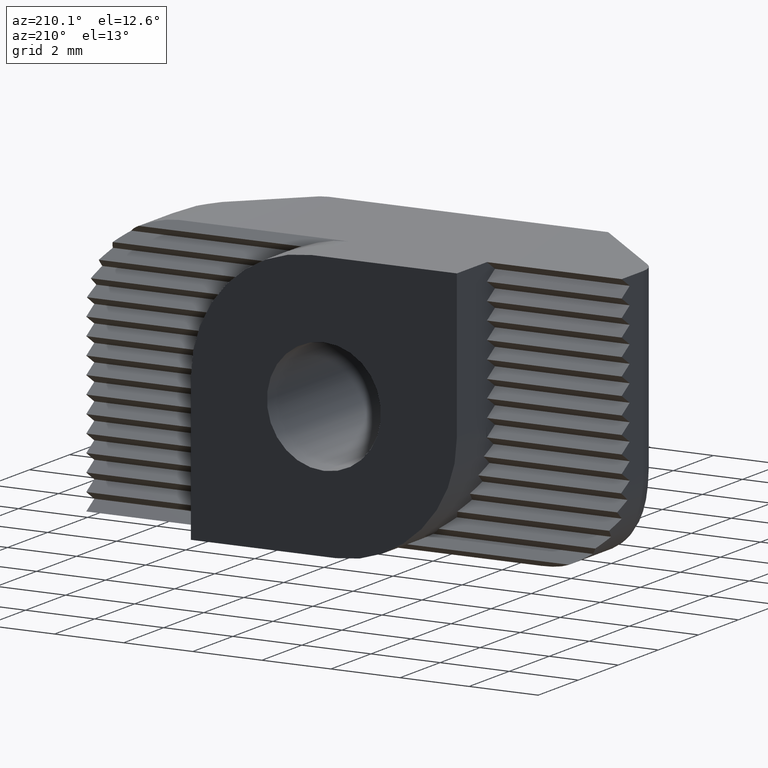
[diagram: clean part render]
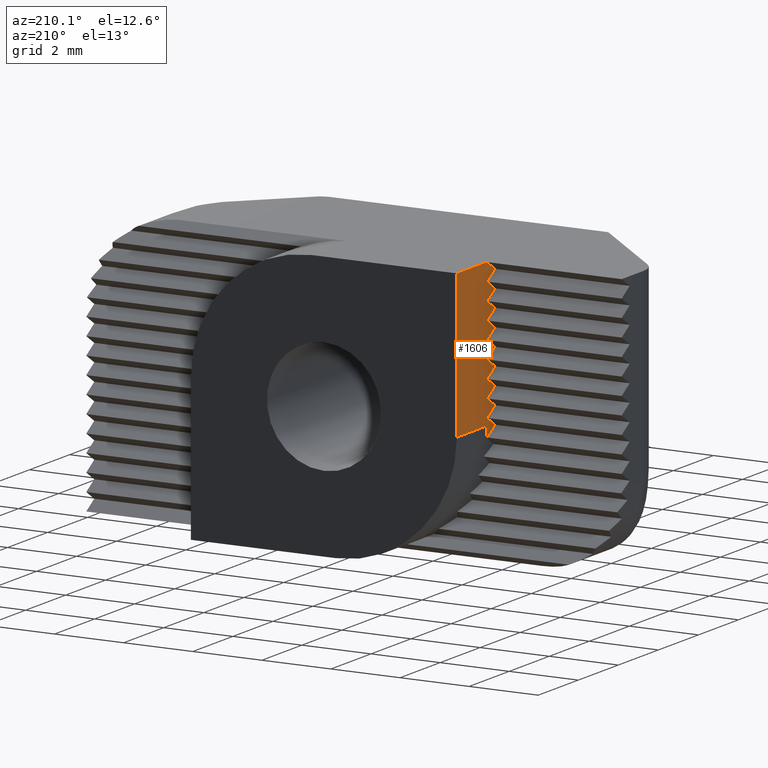
[diagram: same view with one face highlighted and labeled with its STEP entity id]
A machine part, auxiliary view. The second image highlights one B-rep face of the part: STEP entity #1606.
In plain terms, the highlighted planar face has unit normal (1, 0, -0).
Its self-contained STEP definition (entity closure, byte-faithful):
#83=PLANE('',#1743);
#160=FACE_OUTER_BOUND('',#246,.T.);
#246=EDGE_LOOP('',(#1244,#1245,#1246,#1247,#1248,#1249,#1250,#1251,#1252,
#1253,#1254,#1255,#1256,#1257,#1258,#1259,#1260,#1261,#1262,#1263,#1264,
#1265));
#321=LINE('',#2335,#498);
#387=LINE('',#2507,#564);
#416=LINE('',#2629,#593);
#417=LINE('',#2630,#594);
#418=LINE('',#2632,#595);
#419=LINE('',#2634,#596);
#420=LINE('',#2636,#597);
#421=LINE('',#2638,#598);
#422=LINE('',#2640,#599);
#423=LINE('',#2642,#600);
#424=LINE('',#2644,#601);
#425=LINE('',#2646,#602);
#426=LINE('',#2648,#603);
#427=LINE('',#2650,#604);
#428=LINE('',#2652,#605);
#429=LINE('',#2654,#606);
#430=LINE('',#2656,#607);
#431=LINE('',#2658,#608);
#432=LINE('',#2660,#609);
#433=LINE('',#2662,#610);
#434=LINE('',#2664,#611);
#435=LINE('',#2665,#612);
#498=VECTOR('',#1863,1000.);
#564=VECTOR('',#1951,1000.);
#593=VECTOR('',#2036,1000.);
#594=VECTOR('',#2037,1000.);
#595=VECTOR('',#2038,1000.);
#596=VECTOR('',#2039,1000.);
#597=VECTOR('',#2040,1000.);
#598=VECTOR('',#2041,1000.);
#599=VECTOR('',#2042,1000.);
#600=VECTOR('',#2043,1000.);
#601=VECTOR('',#2044,1000.);
#602=VECTOR('',#2045,1000.);
#603=VECTOR('',#2046,1000.);
#604=VECTOR('',#2047,1000.);
#605=VECTOR('',#2048,1000.);
#606=VECTOR('',#2049,1000.);
#607=VECTOR('',#2050,1000.);
#608=VECTOR('',#2051,1000.);
#609=VECTOR('',#2052,1000.);
#610=VECTOR('',#2053,1000.);
#611=VECTOR('',#2054,1000.);
#612=VECTOR('',#2055,1000.);
#691=VERTEX_POINT('',#2330);
#693=VERTEX_POINT('',#2333);
#761=VERTEX_POINT('',#2504);
#762=VERTEX_POINT('',#2506);
#807=VERTEX_POINT('',#2628);
#808=VERTEX_POINT('',#2631);
#809=VERTEX_POINT('',#2633);
#810=VERTEX_POINT('',#2635);
#811=VERTEX_POINT('',#2637);
#812=VERTEX_POINT('',#2639);
#813=VERTEX_POINT('',#2641);
#814=VERTEX_POINT('',#2643);
#815=VERTEX_POINT('',#2645);
#816=VERTEX_POINT('',#2647);
#817=VERTEX_POINT('',#2649);
#818=VERTEX_POINT('',#2651);
#819=VERTEX_POINT('',#2653);
#820=VERTEX_POINT('',#2655);
#821=VERTEX_POINT('',#2657);
#822=VERTEX_POINT('',#2659);
#823=VERTEX_POINT('',#2661);
#824=VERTEX_POINT('',#2663);
#856=EDGE_CURVE('',#691,#693,#321,.T.);
#928=EDGE_CURVE('',#761,#762,#387,.T.);
#982=EDGE_CURVE('',#807,#761,#416,.T.);
#983=EDGE_CURVE('',#807,#691,#417,.T.);
#984=EDGE_CURVE('',#693,#808,#418,.T.);
#985=EDGE_CURVE('',#808,#809,#419,.T.);
#986=EDGE_CURVE('',#809,#810,#420,.T.);
#987=EDGE_CURVE('',#810,#811,#421,.T.);
#988=EDGE_CURVE('',#811,#812,#422,.T.);
#989=EDGE_CURVE('',#812,#813,#423,.T.);
#990=EDGE_CURVE('',#813,#814,#424,.T.);
#991=EDGE_CURVE('',#814,#815,#425,.T.);
#992=EDGE_CURVE('',#815,#816,#426,.T.);
#993=EDGE_CURVE('',#816,#817,#427,.T.);
#994=EDGE_CURVE('',#817,#818,#428,.T.);
#995=EDGE_CURVE('',#818,#819,#429,.T.);
#996=EDGE_CURVE('',#819,#820,#430,.T.);
#997=EDGE_CURVE('',#820,#821,#431,.T.);
#998=EDGE_CURVE('',#821,#822,#432,.T.);
#999=EDGE_CURVE('',#822,#823,#433,.T.);
#1000=EDGE_CURVE('',#823,#824,#434,.T.);
#1001=EDGE_CURVE('',#824,#762,#435,.T.);
#1244=ORIENTED_EDGE('',*,*,#982,.F.);
#1245=ORIENTED_EDGE('',*,*,#983,.T.);
#1246=ORIENTED_EDGE('',*,*,#856,.T.);
#1247=ORIENTED_EDGE('',*,*,#984,.T.);
#1248=ORIENTED_EDGE('',*,*,#985,.T.);
#1249=ORIENTED_EDGE('',*,*,#986,.T.);
#1250=ORIENTED_EDGE('',*,*,#987,.T.);
#1251=ORIENTED_EDGE('',*,*,#988,.T.);
#1252=ORIENTED_EDGE('',*,*,#989,.T.);
#1253=ORIENTED_EDGE('',*,*,#990,.T.);
#1254=ORIENTED_EDGE('',*,*,#991,.T.);
#1255=ORIENTED_EDGE('',*,*,#992,.T.);
#1256=ORIENTED_EDGE('',*,*,#993,.T.);
#1257=ORIENTED_EDGE('',*,*,#994,.T.);
#1258=ORIENTED_EDGE('',*,*,#995,.T.);
#1259=ORIENTED_EDGE('',*,*,#996,.T.);
#1260=ORIENTED_EDGE('',*,*,#997,.T.);
#1261=ORIENTED_EDGE('',*,*,#998,.T.);
#1262=ORIENTED_EDGE('',*,*,#999,.T.);
#1263=ORIENTED_EDGE('',*,*,#1000,.T.);
#1264=ORIENTED_EDGE('',*,*,#1001,.T.);
#1265=ORIENTED_EDGE('',*,*,#928,.F.);
#1606=ADVANCED_FACE('',(#160),#83,.F.);
#1743=AXIS2_PLACEMENT_3D('',#2627,#2034,#2035);
#1863=DIRECTION('',(-2.25288763113871E-16,0.,-1.));
#1951=DIRECTION('',(0.,-1.,0.));
#2034=DIRECTION('center_axis',(1.,0.,-2.25288763113871E-16));
#2035=DIRECTION('ref_axis',(-2.25288763113871E-16,0.,-1.));
#2036=DIRECTION('',(2.25288763113871E-16,0.,1.));
#2037=DIRECTION('',(0.,-1.,0.));
#2038=DIRECTION('',(1.19402805644979E-16,-0.847998304005088,0.52999894000318));
#2039=DIRECTION('',(1.19402805644979E-16,0.847998304005088,0.52999894000318));
#2040=DIRECTION('',(1.19402805644979E-16,-0.847998304005088,0.52999894000318));
#2041=DIRECTION('',(1.19402805644979E-16,0.847998304005088,0.52999894000318));
#2042=DIRECTION('',(1.19402805644979E-16,-0.847998304005088,0.52999894000318));
#2043=DIRECTION('',(1.19402805644979E-16,0.847998304005088,0.52999894000318));
#2044=DIRECTION('',(1.19402805644979E-16,-0.847998304005088,0.52999894000318));
#2045=DIRECTION('',(1.19402805644979E-16,0.847998304005088,0.52999894000318));
#2046=DIRECTION('',(1.19402805644979E-16,-0.847998304005088,0.52999894000318));
#2047=DIRECTION('',(1.19402805644979E-16,0.847998304005088,0.52999894000318));
#2048=DIRECTION('',(1.19402805644979E-16,-0.847998304005088,0.52999894000318));
#2049=DIRECTION('',(1.19402805644979E-16,0.847998304005088,0.52999894000318));
#2050=DIRECTION('',(1.19402805644979E-16,-0.847998304005088,0.52999894000318));
#2051=DIRECTION('',(1.19402805644979E-16,0.847998304005088,0.52999894000318));
#2052=DIRECTION('',(1.19402805644979E-16,-0.847998304005088,0.52999894000318));
#2053=DIRECTION('',(1.19402805644979E-16,0.847998304005088,0.52999894000318));
#2054=DIRECTION('',(1.19402805644979E-16,-0.847998304005088,0.52999894000318));
#2055=DIRECTION('',(1.19402805644979E-16,0.847998304005088,0.52999894000318));
#2330=CARTESIAN_POINT('',(-3.85,4.5,3.5));
#2333=CARTESIAN_POINT('',(-3.85,4.5,3.2));
#2335=CARTESIAN_POINT('',(-3.85,4.5,3.2));
#2504=CARTESIAN_POINT('',(-3.85,6.,7.7));
#2506=CARTESIAN_POINT('',(-3.85,4.5,7.7));
#2507=CARTESIAN_POINT('',(-3.85,6.,7.7));
#2627=CARTESIAN_POINT('Origin',(-3.85,6.,8.20513355428727E-16));
#2628=CARTESIAN_POINT('',(-3.85,6.,3.5));
#2629=CARTESIAN_POINT('',(-3.85,6.,8.20513355428727E-16));
#2630=CARTESIAN_POINT('',(-3.85,6.,3.5));
#2631=CARTESIAN_POINT('',(-3.85,4.1,3.45));
#2632=CARTESIAN_POINT('',(-3.85,4.1,3.45));
#2633=CARTESIAN_POINT('',(-3.85,4.5,3.7));
#2634=CARTESIAN_POINT('',(-3.85,4.5,3.7));
#2635=CARTESIAN_POINT('',(-3.85,4.1,3.95));
#2636=CARTESIAN_POINT('',(-3.85,4.1,3.95));
#2637=CARTESIAN_POINT('',(-3.85,4.5,4.2));
#2638=CARTESIAN_POINT('',(-3.85,4.5,4.2));
#2639=CARTESIAN_POINT('',(-3.85,4.1,4.45));
#2640=CARTESIAN_POINT('',(-3.85,4.1,4.45));
#2641=CARTESIAN_POINT('',(-3.85,4.5,4.7));
#2642=CARTESIAN_POINT('',(-3.85,4.5,4.7));
#2643=CARTESIAN_POINT('',(-3.85,4.1,4.95));
#2644=CARTESIAN_POINT('',(-3.85,4.1,4.95));
#2645=CARTESIAN_POINT('',(-3.85,4.5,5.2));
#2646=CARTESIAN_POINT('',(-3.85,4.5,5.2));
#2647=CARTESIAN_POINT('',(-3.85,4.1,5.45));
#2648=CARTESIAN_POINT('',(-3.85,4.1,5.45));
#2649=CARTESIAN_POINT('',(-3.85,4.5,5.7));
#2650=CARTESIAN_POINT('',(-3.85,4.5,5.7));
#2651=CARTESIAN_POINT('',(-3.85,4.1,5.95));
#2652=CARTESIAN_POINT('',(-3.85,4.1,5.95));
#2653=CARTESIAN_POINT('',(-3.85,4.5,6.2));
#2654=CARTESIAN_POINT('',(-3.85,4.5,6.2));
#2655=CARTESIAN_POINT('',(-3.85,4.1,6.45));
#2656=CARTESIAN_POINT('',(-3.85,4.1,6.45));
#2657=CARTESIAN_POINT('',(-3.85,4.5,6.7));
#2658=CARTESIAN_POINT('',(-3.85,4.5,6.7));
#2659=CARTESIAN_POINT('',(-3.85,4.1,6.95));
#2660=CARTESIAN_POINT('',(-3.85,4.1,6.95));
#2661=CARTESIAN_POINT('',(-3.85,4.5,7.2));
#2662=CARTESIAN_POINT('',(-3.85,4.5,7.2));
#2663=CARTESIAN_POINT('',(-3.85,4.1,7.45));
#2664=CARTESIAN_POINT('',(-3.85,4.1,7.45));
#2665=CARTESIAN_POINT('',(-3.85,4.5,7.7));